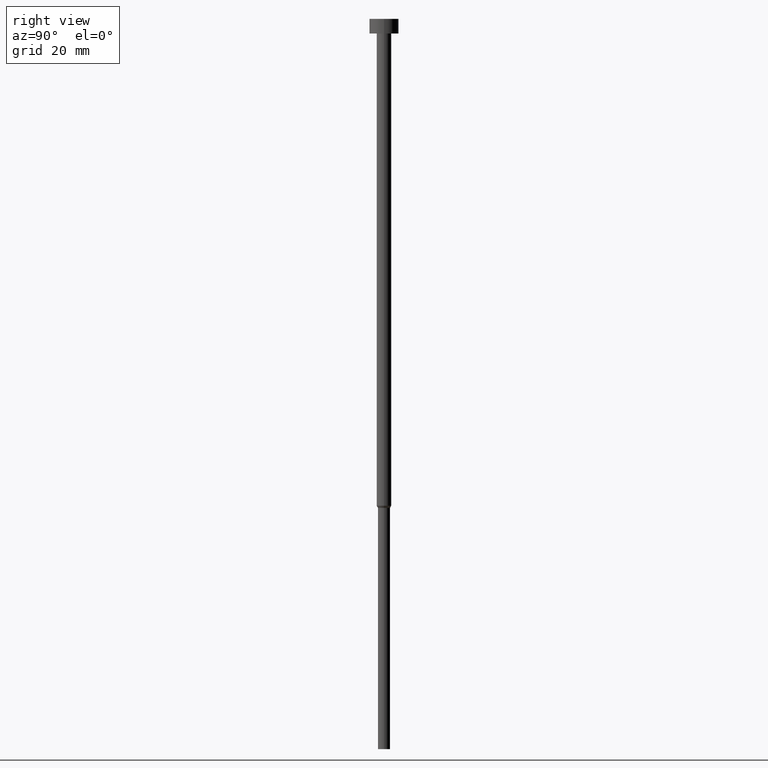
[diagram: clean part render]
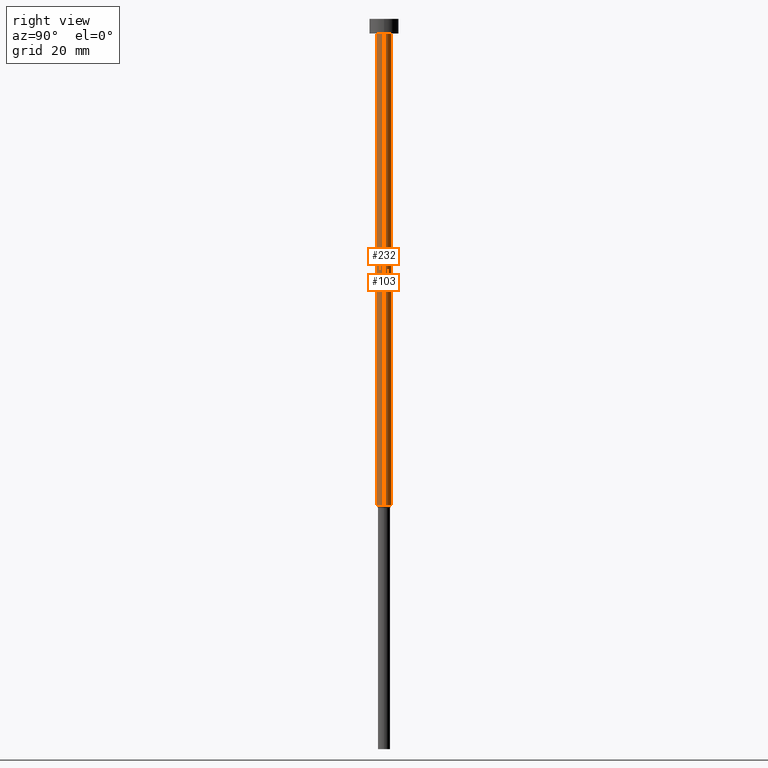
[diagram: same view with one multi-face feature highlighted, each face labeled with its STEP entity id]
A machine part, right view. The highlighted faces form ONE feature: a constant-radius fillet chain: 2 tangent blend faces with common blend radius 1.5 mm. The faces share edges in the B-rep.
Their STEP definitions:
[1] entity #103 (Cylinder):
#13 = CYLINDRICAL_SURFACE ( 'NONE', #141, 1.500000000000000000 ) ;
#21 = VECTOR ( 'NONE', #274, 1000.000000000000000 ) ;
#24 = CARTESIAN_POINT ( 'NONE',  ( 0.000000000000000000, 0.000000000000000000, 0.000000000000000000 ) ) ;
#29 = CARTESIAN_POINT ( 'NONE',  ( 0.000000000000000000, 0.000000000000000000, -3.000000000000000444 ) ) ;
#39 = CARTESIAN_POINT ( 'NONE',  ( 1.500000000000000000, 0.000000000000000000, -3.000000000000000444 ) ) ;
#70 = CARTESIAN_POINT ( 'NONE',  ( 0.000000000000000000, 0.000000000000000000, -100.0000000000000000 ) ) ;
#80 = AXIS2_PLACEMENT_3D ( 'NONE', #70, #246, #267 ) ;
#93 = VERTEX_POINT ( 'NONE', #111 ) ;
#101 = LINE ( 'NONE', #278, #21 ) ;
#102 = VERTEX_POINT ( 'NONE', #39 ) ;
#103 = ADVANCED_FACE ( 'NONE', ( #152 ), #13, .T. ) ;
#110 = EDGE_CURVE ( 'NONE', #306, #211, #343, .T. ) ;
#111 = CARTESIAN_POINT ( 'NONE',  ( -1.500000000000000000, 1.836970198721029934E-16, -3.000000000000000444 ) ) ;
#126 = DIRECTION ( 'NONE',  ( -0.000000000000000000, -0.000000000000000000, 1.000000000000000000 ) ) ;
#141 = AXIS2_PLACEMENT_3D ( 'NONE', #24, #126, #157 ) ;
#152 = FACE_OUTER_BOUND ( 'NONE', #177, .T. ) ;
#157 = DIRECTION ( 'NONE',  ( 1.000000000000000000, 0.000000000000000000, 0.000000000000000000 ) ) ;
#164 = CARTESIAN_POINT ( 'NONE',  ( -1.500000000000000000, 1.836970198721029934E-16, -100.0000000000000000 ) ) ;
#170 = LINE ( 'NONE', #334, #183 ) ;
#177 = EDGE_LOOP ( 'NONE', ( #236, #262, #323, #180 ) ) ;
#180 = ORIENTED_EDGE ( 'NONE', *, *, #261, .F. ) ;
#183 = VECTOR ( 'NONE', #276, 1000.000000000000000 ) ;
#200 = DIRECTION ( 'NONE',  ( 1.000000000000000000, 0.000000000000000000, 0.000000000000000000 ) ) ;
#211 = VERTEX_POINT ( 'NONE', #164 ) ;
#215 = EDGE_CURVE ( 'NONE', #211, #93, #101, .T. ) ;
#229 = DIRECTION ( 'NONE',  ( -0.000000000000000000, -0.000000000000000000, 1.000000000000000000 ) ) ;
#236 = ORIENTED_EDGE ( 'NONE', *, *, #110, .T. ) ;
#246 = DIRECTION ( 'NONE',  ( -0.000000000000000000, -0.000000000000000000, 1.000000000000000000 ) ) ;
#253 = CARTESIAN_POINT ( 'NONE',  ( 1.500000000000000000, 0.000000000000000000, -100.0000000000000000 ) ) ;
#256 = AXIS2_PLACEMENT_3D ( 'NONE', #29, #229, #200 ) ;
#261 = EDGE_CURVE ( 'NONE', #306, #102, #170, .T. ) ;
#262 = ORIENTED_EDGE ( 'NONE', *, *, #215, .T. ) ;
#267 = DIRECTION ( 'NONE',  ( 1.000000000000000000, 0.000000000000000000, 0.000000000000000000 ) ) ;
#274 = DIRECTION ( 'NONE',  ( -0.000000000000000000, -0.000000000000000000, 1.000000000000000000 ) ) ;
#276 = DIRECTION ( 'NONE',  ( -0.000000000000000000, -0.000000000000000000, 1.000000000000000000 ) ) ;
#278 = CARTESIAN_POINT ( 'NONE',  ( -1.500000000000000000, 1.836970198721029934E-16, 0.000000000000000000 ) ) ;
#306 = VERTEX_POINT ( 'NONE', #253 ) ;
#309 = EDGE_CURVE ( 'NONE', #102, #93, #326, .T. ) ;
#323 = ORIENTED_EDGE ( 'NONE', *, *, #309, .F. ) ;
#326 = CIRCLE ( 'NONE', #256, 1.500000000000000000 ) ;
#334 = CARTESIAN_POINT ( 'NONE',  ( 1.500000000000000000, 0.000000000000000000, 0.000000000000000000 ) ) ;
#343 = CIRCLE ( 'NONE', #80, 1.500000000000000000 ) ;
[2] entity #232 (Cylinder):
#2 = FACE_OUTER_BOUND ( 'NONE', #52, .T. ) ;
#14 = ORIENTED_EDGE ( 'NONE', *, *, #261, .T. ) ;
#21 = VECTOR ( 'NONE', #274, 1000.000000000000000 ) ;
#26 = DIRECTION ( 'NONE',  ( 1.000000000000000000, 0.000000000000000000, 0.000000000000000000 ) ) ;
#38 = CIRCLE ( 'NONE', #113, 1.500000000000000000 ) ;
#39 = CARTESIAN_POINT ( 'NONE',  ( 1.500000000000000000, 0.000000000000000000, -3.000000000000000444 ) ) ;
#40 = ORIENTED_EDGE ( 'NONE', *, *, #268, .F. ) ;
#51 = DIRECTION ( 'NONE',  ( -0.000000000000000000, -0.000000000000000000, 1.000000000000000000 ) ) ;
#52 = EDGE_LOOP ( 'NONE', ( #330, #335, #14, #40 ) ) ;
#62 = CIRCLE ( 'NONE', #272, 1.500000000000000000 ) ;
#76 = DIRECTION ( 'NONE',  ( 1.000000000000000000, 0.000000000000000000, 0.000000000000000000 ) ) ;
#93 = VERTEX_POINT ( 'NONE', #111 ) ;
#101 = LINE ( 'NONE', #278, #21 ) ;
#102 = VERTEX_POINT ( 'NONE', #39 ) ;
#104 = CARTESIAN_POINT ( 'NONE',  ( 0.000000000000000000, 0.000000000000000000, 0.000000000000000000 ) ) ;
#106 = CARTESIAN_POINT ( 'NONE',  ( 0.000000000000000000, 0.000000000000000000, -100.0000000000000000 ) ) ;
#111 = CARTESIAN_POINT ( 'NONE',  ( -1.500000000000000000, 1.836970198721029934E-16, -3.000000000000000444 ) ) ;
#113 = AXIS2_PLACEMENT_3D ( 'NONE', #329, #224, #194 ) ;
#134 = AXIS2_PLACEMENT_3D ( 'NONE', #104, #51, #26 ) ;
#139 = CYLINDRICAL_SURFACE ( 'NONE', #134, 1.500000000000000000 ) ;
#164 = CARTESIAN_POINT ( 'NONE',  ( -1.500000000000000000, 1.836970198721029934E-16, -100.0000000000000000 ) ) ;
#170 = LINE ( 'NONE', #334, #183 ) ;
#183 = VECTOR ( 'NONE', #276, 1000.000000000000000 ) ;
#194 = DIRECTION ( 'NONE',  ( 1.000000000000000000, 0.000000000000000000, 0.000000000000000000 ) ) ;
#208 = EDGE_CURVE ( 'NONE', #211, #306, #62, .T. ) ;
#211 = VERTEX_POINT ( 'NONE', #164 ) ;
#215 = EDGE_CURVE ( 'NONE', #211, #93, #101, .T. ) ;
#224 = DIRECTION ( 'NONE',  ( -0.000000000000000000, -0.000000000000000000, 1.000000000000000000 ) ) ;
#232 = ADVANCED_FACE ( 'NONE', ( #2 ), #139, .T. ) ;
#251 = DIRECTION ( 'NONE',  ( -0.000000000000000000, -0.000000000000000000, 1.000000000000000000 ) ) ;
#253 = CARTESIAN_POINT ( 'NONE',  ( 1.500000000000000000, 0.000000000000000000, -100.0000000000000000 ) ) ;
#261 = EDGE_CURVE ( 'NONE', #306, #102, #170, .T. ) ;
#268 = EDGE_CURVE ( 'NONE', #93, #102, #38, .T. ) ;
#272 = AXIS2_PLACEMENT_3D ( 'NONE', #106, #251, #76 ) ;
#274 = DIRECTION ( 'NONE',  ( -0.000000000000000000, -0.000000000000000000, 1.000000000000000000 ) ) ;
#276 = DIRECTION ( 'NONE',  ( -0.000000000000000000, -0.000000000000000000, 1.000000000000000000 ) ) ;
#278 = CARTESIAN_POINT ( 'NONE',  ( -1.500000000000000000, 1.836970198721029934E-16, 0.000000000000000000 ) ) ;
#306 = VERTEX_POINT ( 'NONE', #253 ) ;
#329 = CARTESIAN_POINT ( 'NONE',  ( 0.000000000000000000, 0.000000000000000000, -3.000000000000000444 ) ) ;
#330 = ORIENTED_EDGE ( 'NONE', *, *, #215, .F. ) ;
#334 = CARTESIAN_POINT ( 'NONE',  ( 1.500000000000000000, 0.000000000000000000, 0.000000000000000000 ) ) ;
#335 = ORIENTED_EDGE ( 'NONE', *, *, #208, .T. ) ;